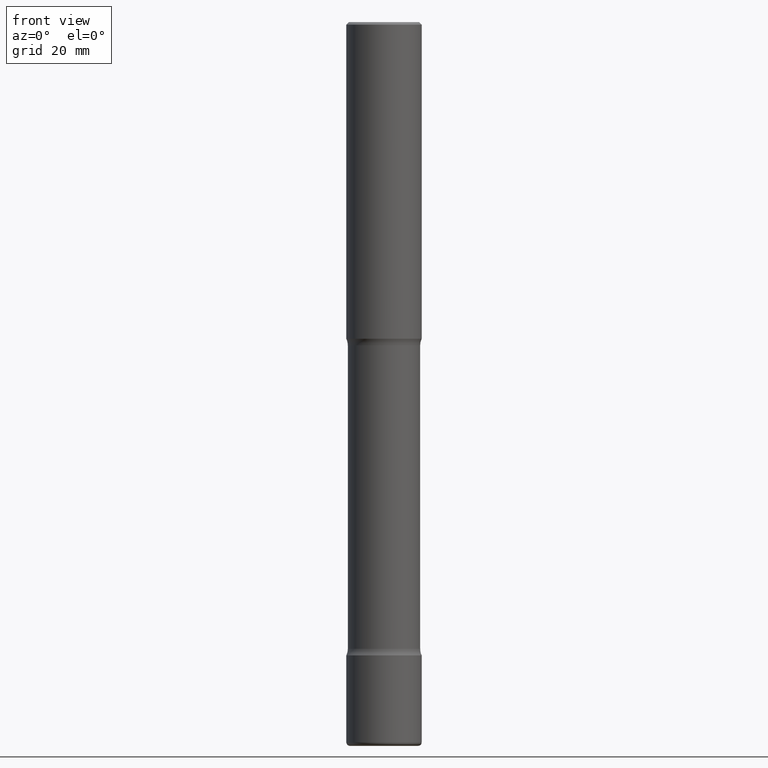
[diagram: clean part render]
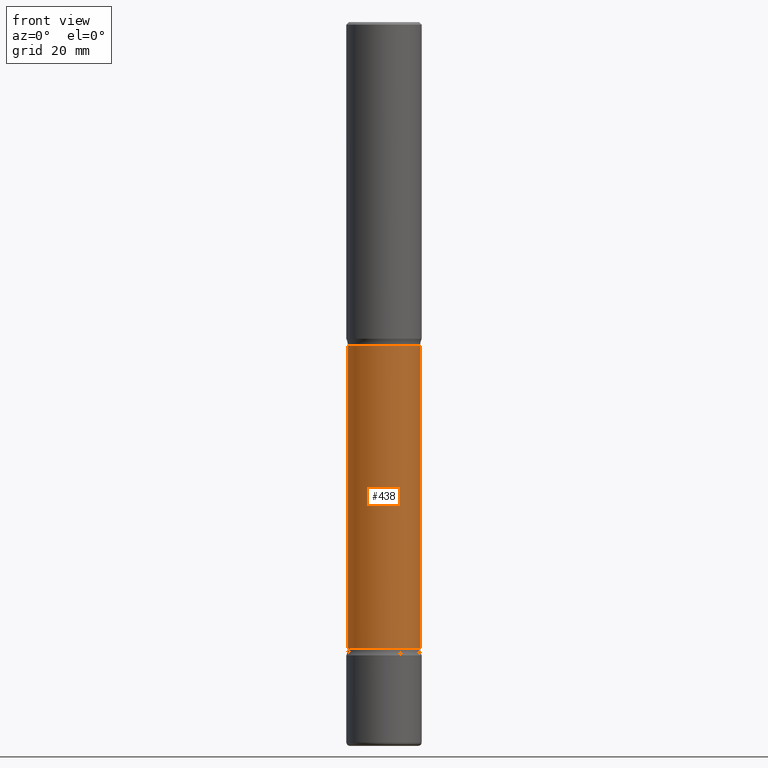
[diagram: same view with one face highlighted and labeled with its STEP entity id]
A machine part, front view. The second image highlights one B-rep face of the part: STEP entity #438.
In plain terms, the highlighted cylindrical surface (edge-blend (fillet) strip) has radius 7.62 mm, axis along (-0, 0, 1).
Its self-contained STEP definition (entity closure, byte-faithful):
#25 = LINE ( 'NONE', #93, #89 ) ;
#48 = CARTESIAN_POINT ( 'NONE',  ( 6.552600008682760916E-29, -9.355376193454202673E-15, -2.679486236794259568 ) ) ;
#68 = AXIS2_PLACEMENT_3D ( 'NONE', #48, #237, #151 ) ;
#86 = VECTOR ( 'NONE', #755, 39.37007874015748143 ) ;
#89 = VECTOR ( 'NONE', #582, 39.37007874015748143 ) ;
#93 = CARTESIAN_POINT ( 'NONE',  ( 0.3000000000000000999, -1.126002731776913978E-14, -2.625000000000000444 ) ) ;
#97 = ORIENTED_EDGE ( 'NONE', *, *, #141, .T. ) ;
#141 = EDGE_CURVE ( 'NONE', #246, #444, #403, .T. ) ;
#151 = DIRECTION ( 'NONE',  ( 1.000000000000000000, -6.982962677686269866E-15, 0.000000000000000000 ) ) ;
#157 = ORIENTED_EDGE ( 'NONE', *, *, #565, .T. ) ;
#192 = CARTESIAN_POINT ( 'NONE',  ( 0.3000000000000002109, -2.023492815324145191E-14, -5.195513763205741320 ) ) ;
#227 = EDGE_CURVE ( 'NONE', #246, #617, #625, .T. ) ;
#237 = DIRECTION ( 'NONE',  ( -2.445468806185136597E-29, 3.491481338843145583E-15, 1.000000000000000000 ) ) ;
#243 = CYLINDRICAL_SURFACE ( 'NONE', #680, 0.3000000000000000999 ) ;
#246 = VERTEX_POINT ( 'NONE', #355 ) ;
#250 = DIRECTION ( 'NONE',  ( -2.445468806185136597E-29, 3.491481338843145583E-15, 1.000000000000000000 ) ) ;
#260 = ORIENTED_EDGE ( 'NONE', *, *, #227, .F. ) ;
#286 = EDGE_CURVE ( 'NONE', #617, #342, #415, .T. ) ;
#342 = VERTEX_POINT ( 'NONE', #520 ) ;
#355 = CARTESIAN_POINT ( 'NONE',  ( -0.3000000000000002109, -1.605912106116573479E-14, -5.195513763205741320 ) ) ;
#366 = FACE_OUTER_BOUND ( 'NONE', #700, .T. ) ;
#381 = CARTESIAN_POINT ( 'NONE',  ( -0.3000000000000000999, -7.033510307182958105E-15, -2.625000000000000444 ) ) ;
#403 = CIRCLE ( 'NONE', #511, 0.3000000000000002109 ) ;
#415 = CIRCLE ( 'NONE', #68, 0.2999999999999999334 ) ;
#438 = ADVANCED_FACE ( 'NONE', ( #366 ), #243, .T. ) ;
#441 = DIRECTION ( 'NONE',  ( -2.445468806185136597E-29, 3.491481338843145583E-15, 1.000000000000000000 ) ) ;
#444 = VERTEX_POINT ( 'NONE', #192 ) ;
#491 = DIRECTION ( 'NONE',  ( 1.000000000000000000, -6.982962677686265922E-15, 0.000000000000000000 ) ) ;
#504 = CARTESIAN_POINT ( 'NONE',  ( -0.2999999999999999889, -7.084220225693425032E-15, -2.679486236794259568 ) ) ;
#511 = AXIS2_PLACEMENT_3D ( 'NONE', #562, #441, #688 ) ;
#520 = CARTESIAN_POINT ( 'NONE',  ( 0.2999999999999999334, -1.145026499676008269E-14, -2.679486236794259568 ) ) ;
#562 = CARTESIAN_POINT ( 'NONE',  ( 1.270546684002518978E-28, -1.814003934993557190E-14, -5.195513763205741320 ) ) ;
#565 = EDGE_CURVE ( 'NONE', #444, #342, #25, .T. ) ;
#582 = DIRECTION ( 'NONE',  ( -2.445468806185136877E-29, 3.491481338843145188E-15, 1.000000000000000000 ) ) ;
#600 = ORIENTED_EDGE ( 'NONE', *, *, #286, .F. ) ;
#617 = VERTEX_POINT ( 'NONE', #504 ) ;
#623 = CARTESIAN_POINT ( 'NONE',  ( 6.419355616235984688E-29, -9.165138514463258190E-15, -2.625000000000000444 ) ) ;
#625 = LINE ( 'NONE', #381, #86 ) ;
#680 = AXIS2_PLACEMENT_3D ( 'NONE', #623, #250, #491 ) ;
#688 = DIRECTION ( 'NONE',  ( 1.000000000000000000, -6.982962677686262766E-15, 0.000000000000000000 ) ) ;
#700 = EDGE_LOOP ( 'NONE', ( #260, #97, #157, #600 ) ) ;
#755 = DIRECTION ( 'NONE',  ( -2.445468806185136877E-29, 3.491481338843145188E-15, 1.000000000000000000 ) ) ;